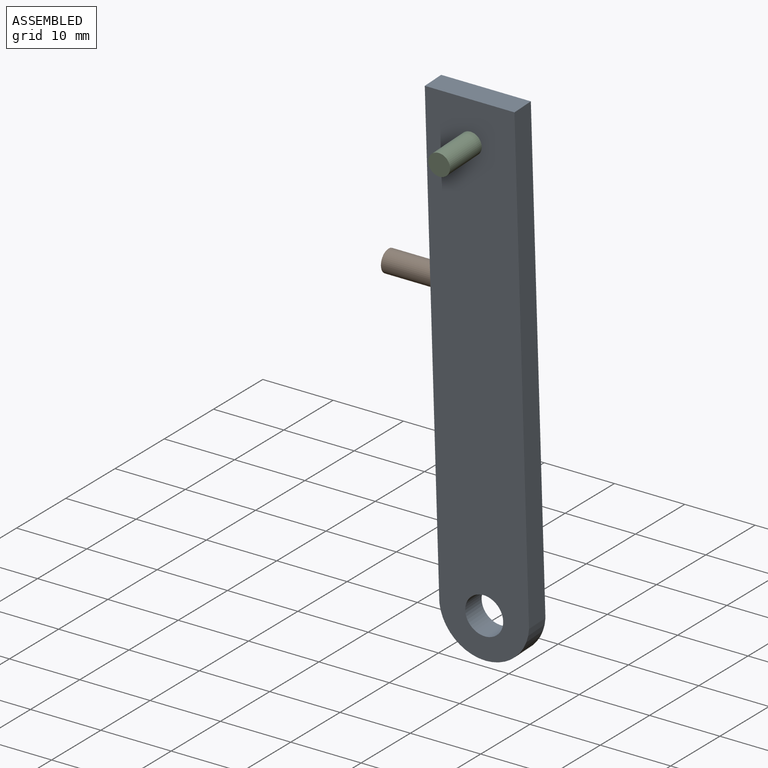
[diagram: assembled view]
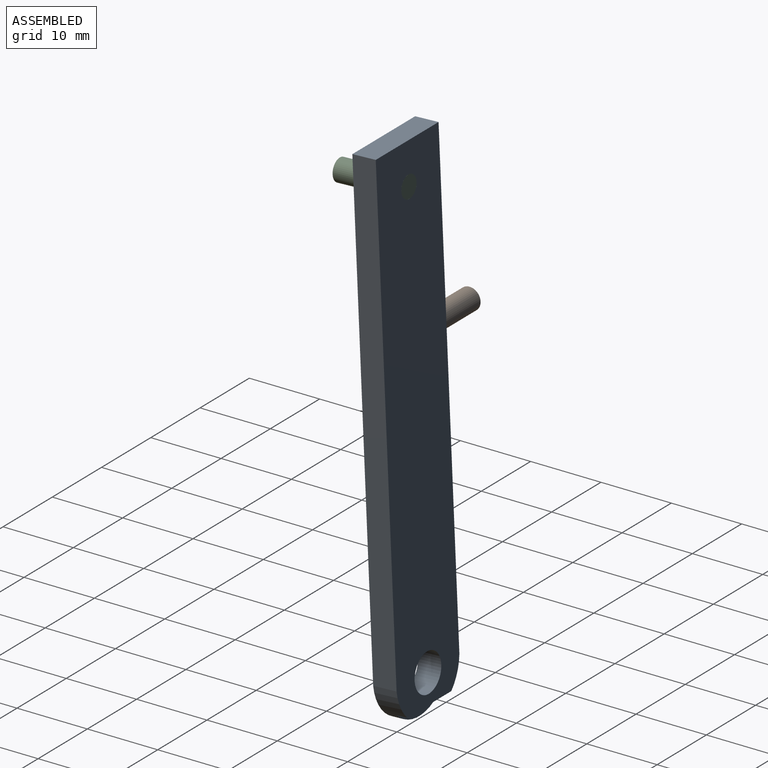
[diagram: assembled view, second angle]
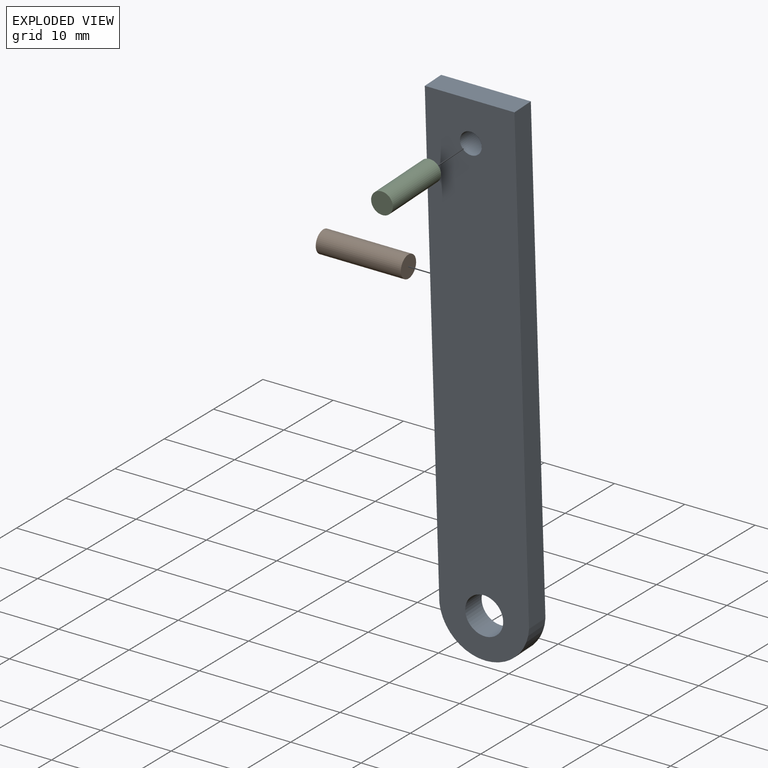
[diagram: exploded view]
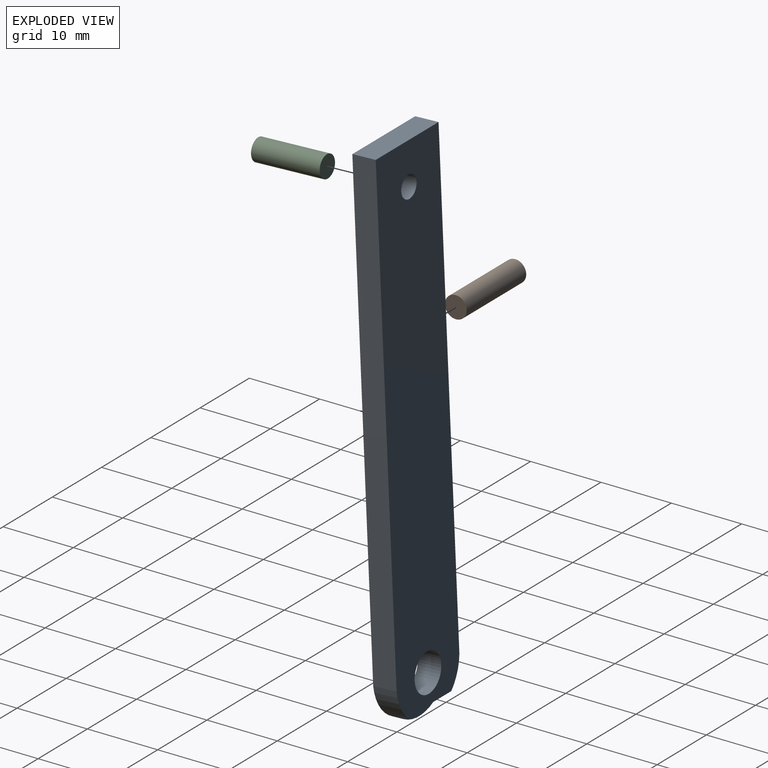
[diagram: exploded view, second angle]
ASSEMBLY  parts=3 mates=3
PART A: 12 faces, bbox 12.8x3.3x73.5 mm
  f0: plane 71.63x12.75mm, normal (0,1,0), area 877.6mm2, adj f1,f2,f3,f4,f5,f8,f9
  f1: cylinder r=6.4mm len=12.75mm, axis (0,1,0), area 48.4mm2, adj f0,f2,f4,f6,f7,f8
  f2: plane 67.59x3.33mm, normal (-1,0,0), area 225.1mm2, adj f0,f1,f3,f6
  f3: plane 12.75x3.33mm, normal (0,0,-1), area 42.5mm2, adj f0,f2,f4,f6
  f4: plane 67.59x3.33mm, normal (1,0,0), area 217.5mm2, adj f0,f1,f3,f6,f10
  f5: cylinder r=2.7mm len=5.4mm, axis (0,1,0), area 56.5mm2, adj f0,f6
  f6: plane 73.47x12.75mm, normal (0,-1,0), area 888.9mm2, adj f1,f2,f3,f4,f5,f9
  f7: plane 8.96x1.83mm, normal (0,1,0), area 11.3mm2, adj f1,f8
  f8: plane 8.96x1.52mm, normal (0,0,1), area 13.6mm2, adj f0,f1,f7
  f9: cylinder r=1.55mm len=3.33mm, axis (0,-1,0), area 32.4mm2, adj f0,f6
  f10: cylinder r=1.55mm len=5mm, axis (1,0,0), area 48.7mm2, adj f4,f11
  f11: plane 3.1x3.1mm, normal (1,0,0), area 7.5mm2, adj f10
PART B: 3 faces, bbox 3.1x12.1x3.1 mm
  f0: cylinder r=1.55mm len=12.1mm, axis (0,1,0), area 117.8mm2, adj f1,f2
  f1: plane 3.1x3.1mm, normal (0,-1,0), area 7.5mm2, adj f0
  f2: plane 3.1x3.1mm, normal (0,1,0), area 7.5mm2, adj f0
PART C: 3 faces, bbox 3.1x9.8x3.1 mm
  f0: cylinder r=1.55mm len=9.78mm, axis (0,1,0), area 95.2mm2, adj f1,f2
  f1: plane 3.1x3.1mm, normal (0,-1,0), area 7.5mm2, adj f0
  f2: plane 3.1x3.1mm, normal (0,1,0), area 7.5mm2, adj f0
PLACE A rot(axis=(0,1,0.02),180deg) t=(43.51,-10.54,-3.7)mm
PLACE B rot(axis=(-0.57,0.57,0.59),118.6deg) t=(23.66,-11.08,-29.27)mm
PLACE C rot(axis=(1,0,0),2.5deg) t=(37.13,-10.28,-9.5)mm
MATE cylindrical A.f9 <-> C.f0  axis (0,1,0.04) through (37.13,-10.28,-9.5)mm
MATE cylindrical B.f0 <-> A.f10  axis (1,0,0) through (35.76,-11.08,-29.27)mm
MATE planar B.f0 <-> A.f10  axis (-1,0,0) through (35.76,-11.08,-29.27)mm
